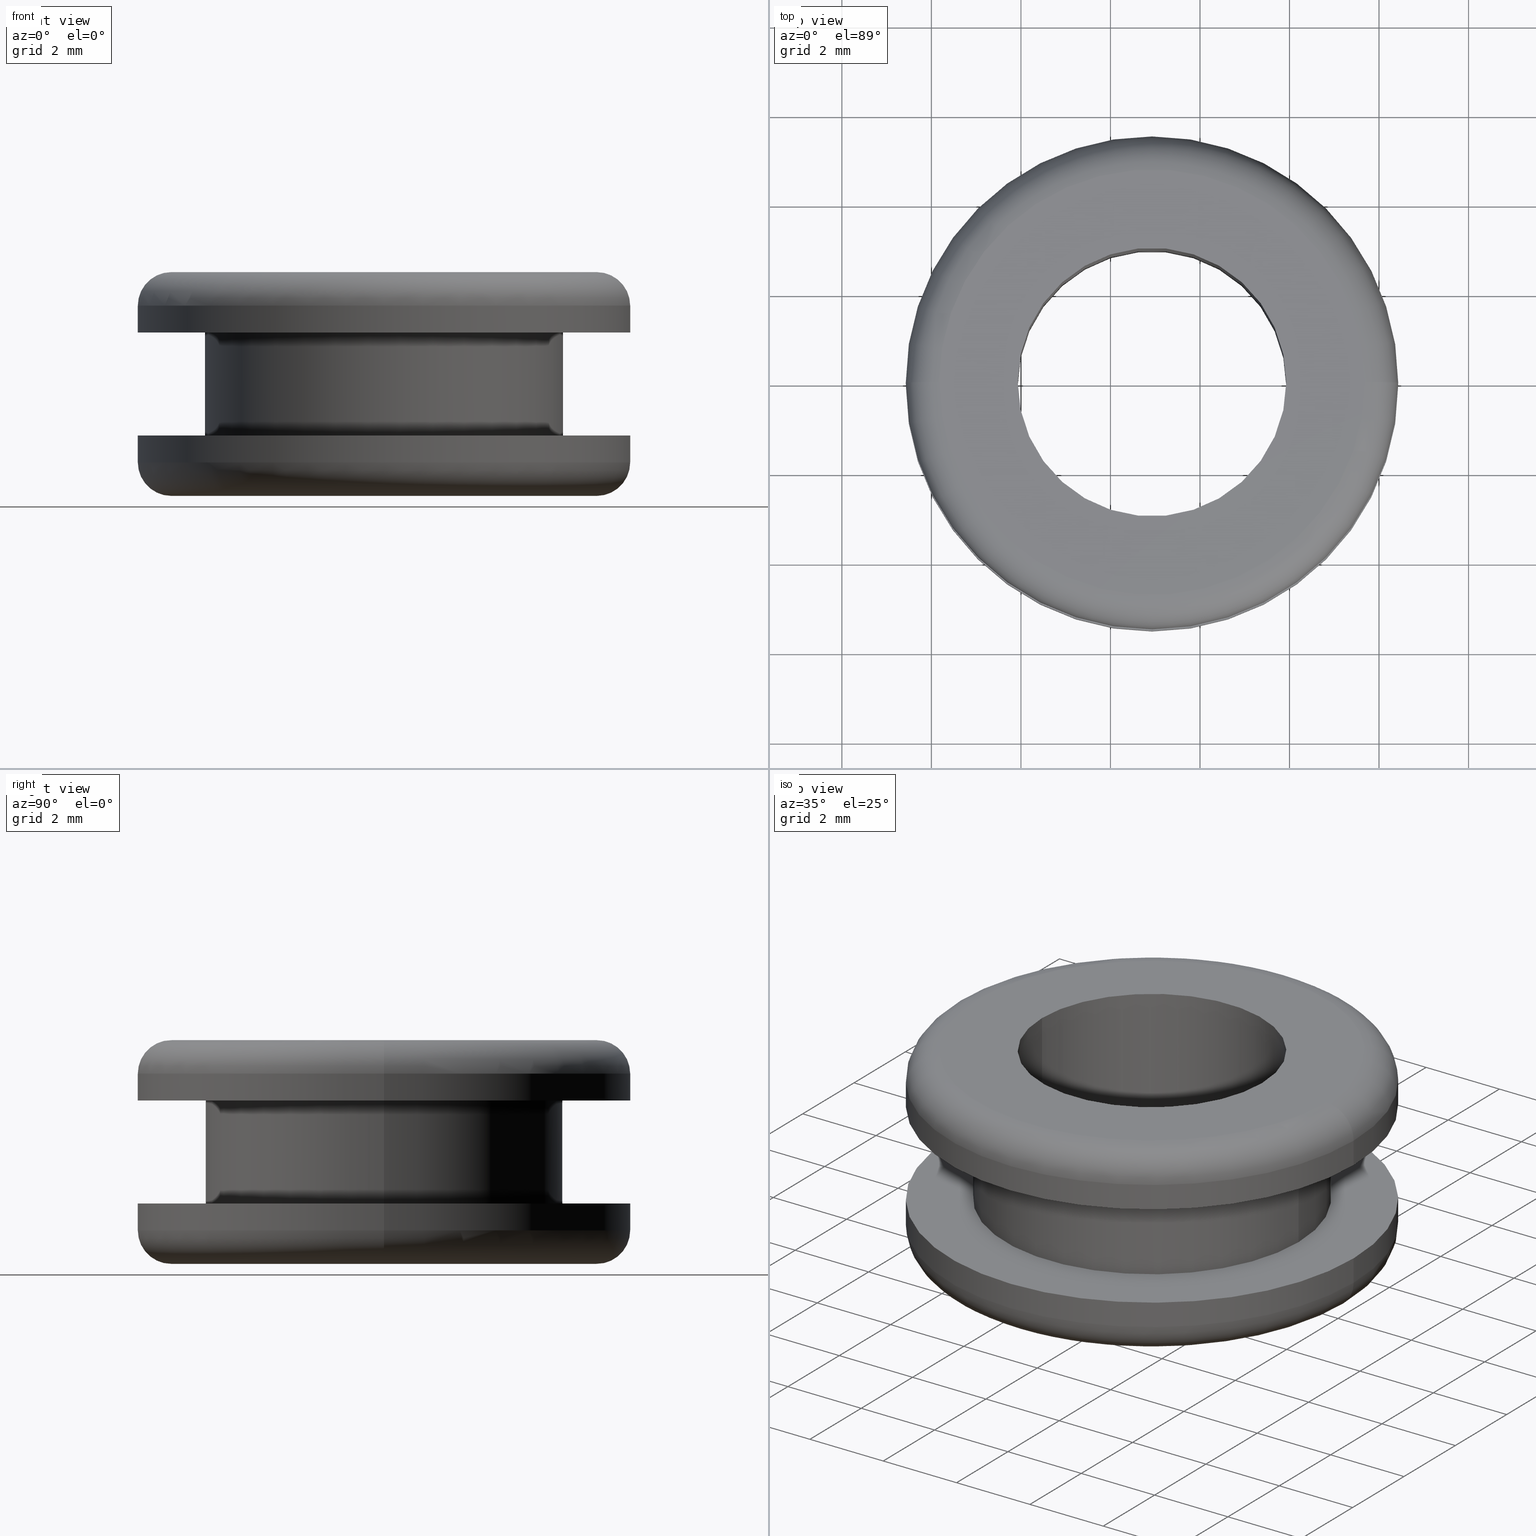
[diagram: canonical four-view strip — front | top / right | iso, engineering-drawing reading convention]
A machine part, canonical four-view strip (front | top / right | iso — engineering-drawing reading convention). The complete STEP part file that produces these views, byte-faithful:
ISO-10303-21;
HEADER;
FILE_DESCRIPTION (( 'STEP AP214' ),
    '1' );
FILE_NAME ('TM_346_9.STEP',
    '2018-06-13T02:54:28',
    ( '' ),
    ( '' ),
    'SwSTEP 2.0',
    'SolidWorks 2015',
    '' );
FILE_SCHEMA (( 'AUTOMOTIVE_DESIGN' ));
ENDSEC;

DATA;
#1 = DIRECTION ( 'NONE',  ( 1.000000000000000000, 0.0000000000000000000, 0.0000000000000000000 ) ) ;
#2 = VECTOR ( 'NONE', #240, 1000.000000000000000 ) ;
#3 = MECHANICAL_DESIGN_GEOMETRIC_PRESENTATION_REPRESENTATION (  '', ( #429 ), #29 ) ;
#4 = EDGE_LOOP ( 'NONE', ( #170, #343 ) ) ;
#5 = DIRECTION ( 'NONE',  ( 0.0000000000000000000, 0.0000000000000000000, -1.000000000000000000 ) ) ;
#6 = ADVANCED_FACE ( 'NONE', ( #11, #252 ), #16, .T. ) ;
#7 = LINE ( 'NONE', #328, #81 ) ;
#8 = VERTEX_POINT ( 'NONE', #103 ) ;
#9 = EDGE_CURVE ( 'NONE', #135, #413, #188, .T. ) ;
#10 = SURFACE_STYLE_FILL_AREA ( #163 ) ;
#11 = FACE_OUTER_BOUND ( 'NONE', #385, .T. ) ;
#12 = ORIENTED_EDGE ( 'NONE', *, *, #333, .F. ) ;
#13 = CIRCLE ( 'NONE', #226, 0.7500000000000006700 ) ;
#14 = ORIENTED_EDGE ( 'NONE', *, *, #432, .T. ) ;
#15 = DIRECTION ( 'NONE',  ( 0.0000000000000000000, 0.0000000000000000000, -1.000000000000000000 ) ) ;
#16 = PLANE ( 'NONE',  #263 ) ;
#17 = AXIS2_PLACEMENT_3D ( 'NONE', #362, #55, #107 ) ;
#18 = CARTESIAN_POINT ( 'NONE',  ( 104.1781270166739100, 0.0000000000000000000, 133.5834774696090200 ) ) ;
#19 = ORIENTED_EDGE ( 'NONE', *, *, #9, .F. ) ;
#20 = AXIS2_PLACEMENT_3D ( 'NONE', #93, #84, #21 ) ;
#21 = DIRECTION ( 'NONE',  ( -1.000000000000000000, 0.0000000000000000000, 0.0000000000000000000 ) ) ;
#22 = VERTEX_POINT ( 'NONE', #210 ) ;
#23 = DIRECTION ( 'NONE',  ( 0.0000000000000000000, 0.0000000000000000000, -1.000000000000000000 ) ) ;
#24 = ORIENTED_EDGE ( 'NONE', *, *, #381, .F. ) ;
#25 = EDGE_CURVE ( 'NONE', #154, #222, #386, .T. ) ;
#26 = CARTESIAN_POINT ( 'NONE',  ( 103.4281270166739500, 0.0000000000000000000, 0.0000000000000000000 ) ) ;
#27 = DIRECTION ( 'NONE',  ( 0.0000000000000000000, 0.0000000000000000000, -1.000000000000000000 ) ) ;
#28 = DIRECTION ( 'NONE',  ( -1.000000000000000000, 0.0000000000000000000, 0.0000000000000000000 ) ) ;
#29 =( GEOMETRIC_REPRESENTATION_CONTEXT ( 3 ) GLOBAL_UNCERTAINTY_ASSIGNED_CONTEXT ( ( #189 ) ) GLOBAL_UNIT_ASSIGNED_CONTEXT ( ( #96, #436, #211 ) ) REPRESENTATION_CONTEXT ( 'NONE', 'WORKASPACE' ) );
#30 = TOROIDAL_SURFACE ( 'NONE', #171, 4.750000000027499800, 0.7500000000000000000 ) ;
#31 = CARTESIAN_POINT ( 'NONE',  ( 105.9281270166740100, 0.0000000000000000000, 0.0000000000000000000 ) ) ;
#32 = CARTESIAN_POINT ( 'NONE',  ( 108.9281270167014100, 0.0000000000000000000, 134.9334774696090200 ) ) ;
#33 = ADVANCED_FACE ( 'NONE', ( #92 ), #465, .F. ) ;
#34 = EDGE_CURVE ( 'NONE', #268, #8, #179, .T. ) ;
#35 = EDGE_LOOP ( 'NONE', ( #61, #12, #157, #217 ) ) ;
#36 = ORIENTED_EDGE ( 'NONE', *, *, #453, .F. ) ;
#37 = DIRECTION ( 'NONE',  ( -1.000000000000000000, 0.0000000000000000000, 0.0000000000000000000 ) ) ;
#38 = ORIENTED_EDGE ( 'NONE', *, *, #402, .T. ) ;
#39 = CARTESIAN_POINT ( 'NONE',  ( 113.6781270167288900, 5.817072295983604900E-016, 134.3334774696090200 ) ) ;
#40 = FACE_OUTER_BOUND ( 'NONE', #116, .T. ) ;
#41 = ADVANCED_FACE ( 'NONE', ( #367, #79 ), #468, .T. ) ;
#42 = AXIS2_PLACEMENT_3D ( 'NONE', #235, #212, #125 ) ;
#43 = SURFACE_STYLE_FILL_AREA ( #351 ) ;
#44 = ORIENTED_EDGE ( 'NONE', *, *, #325, .T. ) ;
#45 = EDGE_CURVE ( 'NONE', #427, #403, #165, .T. ) ;
#46 = FACE_OUTER_BOUND ( 'NONE', #320, .T. ) ;
#47 = AXIS2_PLACEMENT_3D ( 'NONE', #63, #128, #245 ) ;
#48 = EDGE_CURVE ( 'NONE', #389, #456, #256, .T. ) ;
#49 = DIRECTION ( 'NONE',  ( 0.0000000000000000000, 0.0000000000000000000, -1.000000000000000000 ) ) ;
#50 = LINE ( 'NONE', #306, #437 ) ;
#51 = EDGE_LOOP ( 'NONE', ( #409, #159, #410, #19 ) ) ;
#52 = DIRECTION ( 'NONE',  ( 0.0000000000000000000, 0.0000000000000000000, -1.000000000000000000 ) ) ;
#53 = DIRECTION ( 'NONE',  ( -1.000000000000000000, -1.224646799147352000E-016, 0.0000000000000000000 ) ) ;
#54 = CARTESIAN_POINT ( 'NONE',  ( 108.9281270167014100, 0.0000000000000000000, 134.9334774696090200 ) ) ;
#55 = DIRECTION ( 'NONE',  ( 0.0000000000000000000, 0.0000000000000000000, -1.000000000000000000 ) ) ;
#56 = CIRCLE ( 'NONE', #452, 5.500000000027399400 ) ;
#57 = PRODUCT_DEFINITION_SHAPE ( 'NONE', 'NONE',  #120 ) ;
#58 = CARTESIAN_POINT ( 'NONE',  ( 108.9281270167014100, 0.0000000000000000000, 138.5834774696089900 ) ) ;
#59 = COLOUR_RGB ( '',0.7921568627450980000, 0.8196078431372548800, 0.9333333333333333500 ) ;
#60 = CIRCLE ( 'NONE', #139, 5.500000000027399400 ) ;
#61 = ORIENTED_EDGE ( 'NONE', *, *, #48, .F. ) ;
#62 = AXIS2_PLACEMENT_3D ( 'NONE', #129, #49, #463 ) ;
#63 = CARTESIAN_POINT ( 'NONE',  ( 108.9281270167014100, 0.0000000000000000000, 137.8334774696089900 ) ) ;
#64 = PLANE ( 'NONE',  #474 ) ;
#65 = CARTESIAN_POINT ( 'NONE',  ( 108.9281270167014100, 0.0000000000000000000, 134.3334774696090200 ) ) ;
#66 = CARTESIAN_POINT ( 'NONE',  ( 104.9281270166740100, 0.0000000000000000000, 134.9334774696090200 ) ) ;
#67 = EDGE_CURVE ( 'NONE', #22, #369, #70, .T. ) ;
#68 = DIRECTION ( 'NONE',  ( 0.0000000000000000000, 0.0000000000000000000, -1.000000000000000000 ) ) ;
#69 = DIRECTION ( 'NONE',  ( -1.000000000000000000, 0.0000000000000000000, 0.0000000000000000000 ) ) ;
#70 = LINE ( 'NONE', #31, #248 ) ;
#71 = ADVANCED_FACE ( 'NONE', ( #349 ), #338, .F. ) ;
#72 = ORIENTED_EDGE ( 'NONE', *, *, #76, .F. ) ;
#73 = VERTEX_POINT ( 'NONE', #203 ) ;
#74 = AXIS2_PLACEMENT_3D ( 'NONE', #142, #364, #284 ) ;
#75 = CIRCLE ( 'NONE', #42, 0.7500000000000006700 ) ;
#76 = EDGE_CURVE ( 'NONE', #198, #8, #292, .T. ) ;
#77 = ORIENTED_EDGE ( 'NONE', *, *, #453, .T. ) ;
#78 = ORIENTED_EDGE ( 'NONE', *, *, #151, .F. ) ;
#79 = FACE_BOUND ( 'NONE', #4, .T. ) ;
#80 = ORIENTED_EDGE ( 'NONE', *, *, #117, .T. ) ;
#81 = VECTOR ( 'NONE', #143, 1000.000000000000000 ) ;
#82 = ORIENTED_EDGE ( 'NONE', *, *, #105, .F. ) ;
#83 = DIRECTION ( 'NONE',  ( -1.000000000000000000, 0.0000000000000000000, 0.0000000000000000000 ) ) ;
#84 = DIRECTION ( 'NONE',  ( 0.0000000000000000000, 0.0000000000000000000, -1.000000000000000000 ) ) ;
#85 = AXIS2_PLACEMENT_3D ( 'NONE', #97, #68, #392 ) ;
#86 = CARTESIAN_POINT ( 'NONE',  ( 113.6781270167288900, 6.276314845663863700E-016, 138.5834774696089900 ) ) ;
#87 = ORIENTED_EDGE ( 'NONE', *, *, #346, .F. ) ;
#88 = CARTESIAN_POINT ( 'NONE',  ( 114.4281270167289900, 0.0000000000000000000, 134.9334774696090200 ) ) ;
#89 = CARTESIAN_POINT ( 'NONE',  ( 104.1781270166739100, 0.0000000000000000000, 134.3334774696090200 ) ) ;
#90 = CYLINDRICAL_SURFACE ( 'NONE', #377, 4.000000000027398500 ) ;
#91 = EDGE_CURVE ( 'NONE', #101, #173, #445, .T. ) ;
#92 = FACE_OUTER_BOUND ( 'NONE', #296, .T. ) ;
#93 = CARTESIAN_POINT ( 'NONE',  ( 108.9281270167014100, 0.0000000000000000000, 137.8334774696089900 ) ) ;
#94 = DIRECTION ( 'NONE',  ( -0.0000000000000000000, -1.000000000000000000, -0.0000000000000000000 ) ) ;
#95 = DIRECTION ( 'NONE',  ( -1.000000000000000000, 0.0000000000000000000, 0.0000000000000000000 ) ) ;
#96 =( LENGTH_UNIT ( ) NAMED_UNIT ( * ) SI_UNIT ( .MILLI., .METRE. ) );
#97 = CARTESIAN_POINT ( 'NONE',  ( 108.9281270167014100, 0.0000000000000000000, 134.3334774696090200 ) ) ;
#98 = AXIS2_PLACEMENT_3D ( 'NONE', #279, #358, #285 ) ;
#99 = DIRECTION ( 'NONE',  ( 0.0000000000000000000, 0.0000000000000000000, -1.000000000000000000 ) ) ;
#100 = CIRCLE ( 'NONE', #396, 0.7500000000000006700 ) ;
#101 = VERTEX_POINT ( 'NONE', #424 ) ;
#102 = AXIS2_PLACEMENT_3D ( 'NONE', #88, #166, #361 ) ;
#103 = CARTESIAN_POINT ( 'NONE',  ( 114.4281270167288900, 6.735557395344127400E-016, 134.3334774696090200 ) ) ;
#104 = CARTESIAN_POINT ( 'NONE',  ( 108.9281270167014100, 0.0000000000000000000, 0.0000000000000000000 ) ) ;
#105 = EDGE_CURVE ( 'NONE', #135, #154, #56, .T. ) ;
#106 = ADVANCED_FACE ( 'NONE', ( #236 ), #147, .T. ) ;
#107 = DIRECTION ( 'NONE',  ( -1.000000000000000000, 0.0000000000000000000, 0.0000000000000000000 ) ) ;
#108 = DIRECTION ( 'NONE',  ( -1.000000000000000000, 0.0000000000000000000, 0.0000000000000000000 ) ) ;
#109 = CIRCLE ( 'NONE', #274, 5.500000000027497100 ) ;
#110 = EDGE_LOOP ( 'NONE', ( #301, #416, #254, #138 ) ) ;
#111 = ORIENTED_EDGE ( 'NONE', *, *, #123, .F. ) ;
#112 = CIRCLE ( 'NONE', #261, 4.750000000027496200 ) ;
#113 = ORIENTED_EDGE ( 'NONE', *, *, #305, .T. ) ;
#114 = AXIS2_PLACEMENT_3D ( 'NONE', #162, #52, #290 ) ;
#115 = ORIENTED_EDGE ( 'NONE', *, *, #9, .T. ) ;
#116 = EDGE_LOOP ( 'NONE', ( #348, #185 ) ) ;
#117 = EDGE_CURVE ( 'NONE', #222, #413, #155, .T. ) ;
#118 = EDGE_LOOP ( 'NONE', ( #450, #335, #72, #111 ) ) ;
#119 = FACE_OUTER_BOUND ( 'NONE', #126, .T. ) ;
#120 = PRODUCT_DEFINITION ( 'UNKNOWN', '', #148, #350 ) ;
#121 = AXIS2_PLACEMENT_3D ( 'NONE', #387, #322, #108 ) ;
#122 = CARTESIAN_POINT ( 'NONE',  ( 113.6781270167289900, 0.0000000000000000000, 138.5834774696089900 ) ) ;
#123 = EDGE_CURVE ( 'NONE', #260, #198, #428, .T. ) ;
#124 =( NAMED_UNIT ( * ) PLANE_ANGLE_UNIT ( ) SI_UNIT ( $, .RADIAN. ) );
#125 = DIRECTION ( 'NONE',  ( -1.000000000000000000, -1.224646799147352000E-016, 0.0000000000000000000 ) ) ;
#126 = EDGE_LOOP ( 'NONE', ( #347, #77, #44, #87 ) ) ;
#127 = CARTESIAN_POINT ( 'NONE',  ( 108.9281270167014100, 0.0000000000000000000, 134.3334774696090200 ) ) ;
#128 = DIRECTION ( 'NONE',  ( 0.0000000000000000000, 0.0000000000000000000, -1.000000000000000000 ) ) ;
#129 = CARTESIAN_POINT ( 'NONE',  ( 108.9281270167014100, 0.0000000000000000000, 133.5834774696090200 ) ) ;
#130 = CARTESIAN_POINT ( 'NONE',  ( 108.9281270167014100, 0.0000000000000000000, 0.0000000000000000000 ) ) ;
#131 = TOROIDAL_SURFACE ( 'NONE', #47, 4.750000000027499800, 0.7500000000000000000 ) ;
#132 = DIRECTION ( 'NONE',  ( 0.0000000000000000000, 0.0000000000000000000, -1.000000000000000000 ) ) ;
#133 = DIRECTION ( 'NONE',  ( -1.000000000000000000, 0.0000000000000000000, 0.0000000000000000000 ) ) ;
#134 = ADVANCED_FACE ( 'NONE', ( #46 ), #131, .T. ) ;
#135 = VERTEX_POINT ( 'NONE', #160 ) ;
#136 = CARTESIAN_POINT ( 'NONE',  ( 103.4281270166739100, 0.0000000000000000000, 134.3334774696090200 ) ) ;
#137 = PRESENTATION_STYLE_ASSIGNMENT (( #398 ) ) ;
#138 = ORIENTED_EDGE ( 'NONE', *, *, #45, .F. ) ;
#139 = AXIS2_PLACEMENT_3D ( 'NONE', #168, #23, #164 ) ;
#140 = DIRECTION ( 'NONE',  ( -1.000000000000000000, 0.0000000000000000000, 0.0000000000000000000 ) ) ;
#141 = DIRECTION ( 'NONE',  ( 0.0000000000000000000, 0.0000000000000000000, -1.000000000000000000 ) ) ;
#142 = CARTESIAN_POINT ( 'NONE',  ( 108.9281270167014100, 0.0000000000000000000, 138.5834774696089900 ) ) ;
#143 = DIRECTION ( 'NONE',  ( 0.0000000000000000000, 0.0000000000000000000, -1.000000000000000000 ) ) ;
#144 = ORIENTED_EDGE ( 'NONE', *, *, #280, .F. ) ;
#145 = ORIENTED_EDGE ( 'NONE', *, *, #423, .F. ) ;
#146 = DIRECTION ( 'NONE',  ( 0.0000000000000000000, 0.0000000000000000000, -1.000000000000000000 ) ) ;
#147 = TOROIDAL_SURFACE ( 'NONE', #20, 4.750000000027499800, 0.7500000000000000000 ) ;
#148 = PRODUCT_DEFINITION_FORMATION_WITH_SPECIFIED_SOURCE ( 'ANY', '', #446, .NOT_KNOWN. ) ;
#149 = ADVANCED_FACE ( 'NONE', ( #414, #40 ), #438, .T. ) ;
#150 = AXIS2_PLACEMENT_3D ( 'NONE', #39, #220, #53 ) ;
#151 = EDGE_CURVE ( 'NONE', #365, #360, #224, .T. ) ;
#152 = CIRCLE ( 'NONE', #186, 4.000000000027398500 ) ;
#153 = EDGE_LOOP ( 'NONE', ( #78, #144 ) ) ;
#154 = VERTEX_POINT ( 'NONE', #289 ) ;
#155 = CIRCLE ( 'NONE', #475, 5.500000000027399400 ) ;
#156 =( LENGTH_UNIT ( ) NAMED_UNIT ( * ) SI_UNIT ( .MILLI., .METRE. ) );
#157 = ORIENTED_EDGE ( 'NONE', *, *, #67, .T. ) ;
#158 = TOROIDAL_SURFACE ( 'NONE', #85, 4.750000000027499800, 0.7500000000000000000 ) ;
#159 = ORIENTED_EDGE ( 'NONE', *, *, #25, .T. ) ;
#160 = CARTESIAN_POINT ( 'NONE',  ( 103.4281270166740000, 0.0000000000000000000, 137.8334774696089900 ) ) ;
#161 = AXIS2_PLACEMENT_3D ( 'NONE', #258, #404, #37 ) ;
#162 = CARTESIAN_POINT ( 'NONE',  ( 108.9281270167014100, 0.0000000000000000000, 133.5834774696090200 ) ) ;
#163 = FILL_AREA_STYLE ('',( #316 ) ) ;
#164 = DIRECTION ( 'NONE',  ( -1.000000000000000000, 0.0000000000000000000, 0.0000000000000000000 ) ) ;
#165 = CIRCLE ( 'NONE', #243, 4.000000000027398500 ) ;
#166 = DIRECTION ( 'NONE',  ( 0.0000000000000000000, 0.0000000000000000000, 1.000000000000000000 ) ) ;
#167 = DIRECTION ( 'NONE',  ( 0.0000000000000000000, 0.0000000000000000000, -1.000000000000000000 ) ) ;
#168 = CARTESIAN_POINT ( 'NONE',  ( 108.9281270167014100, 0.0000000000000000000, 137.2334774696090000 ) ) ;
#169 = PRODUCT_RELATED_PRODUCT_CATEGORY ( 'part', '', ( #446 ) ) ;
#170 = ORIENTED_EDGE ( 'NONE', *, *, #174, .F. ) ;
#171 = AXIS2_PLACEMENT_3D ( 'NONE', #65, #473, #140 ) ;
#172 = CYLINDRICAL_SURFACE ( 'NONE', #417, 4.000000000027398500 ) ;
#173 = VERTEX_POINT ( 'NONE', #326 ) ;
#174 = EDGE_CURVE ( 'NONE', #173, #101, #331, .T. ) ;
#175 = DIRECTION ( 'NONE',  ( 0.0000000000000000000, 0.0000000000000000000, -1.000000000000000000 ) ) ;
#176 = CARTESIAN_POINT ( 'NONE',  ( 108.9281270167014100, 0.0000000000000000000, 137.8334774696089900 ) ) ;
#177 = CARTESIAN_POINT ( 'NONE',  ( 108.9281270167014100, 0.0000000000000000000, 138.5834774696089900 ) ) ;
#178 = DIRECTION ( 'NONE',  ( 0.0000000000000000000, 0.0000000000000000000, -1.000000000000000000 ) ) ;
#179 = LINE ( 'NONE', #430, #376 ) ;
#180 = CARTESIAN_POINT ( 'NONE',  ( 114.4281270167288100, 6.735557395343997200E-016, 0.0000000000000000000 ) ) ;
#181 = PRESENTATION_STYLE_ASSIGNMENT (( #207 ) ) ;
#182 = ORIENTED_EDGE ( 'NONE', *, *, #34, .F. ) ;
#183 = ADVANCED_FACE ( 'NONE', ( #119 ), #30, .T. ) ;
#184 = CYLINDRICAL_SURFACE ( 'NONE', #373, 5.500000000027455400 ) ;
#185 = ORIENTED_EDGE ( 'NONE', *, *, #478, .F. ) ;
#186 = AXIS2_PLACEMENT_3D ( 'NONE', #206, #200, #388 ) ;
#187 = CIRCLE ( 'NONE', #352, 5.500000000027399400 ) ;
#188 = LINE ( 'NONE', #234, #2 ) ;
#189 = UNCERTAINTY_MEASURE_WITH_UNIT (LENGTH_MEASURE( 1.000000000000000100E-005 ), #96, 'distance_accuracy_value', 'NONE');
#190 = ORIENTED_EDGE ( 'NONE', *, *, #117, .F. ) ;
#191 = FACE_OUTER_BOUND ( 'NONE', #153, .T. ) ;
#192 = DIRECTION ( 'NONE',  ( 0.0000000000000000000, 0.0000000000000000000, -1.000000000000000000 ) ) ;
#193 = ORIENTED_EDGE ( 'NONE', *, *, #67, .F. ) ;
#194 = SHAPE_DEFINITION_REPRESENTATION ( #57, #319 ) ;
#195 = AXIS2_PLACEMENT_3D ( 'NONE', #176, #178, #69 ) ;
#196 = EDGE_CURVE ( 'NONE', #8, #73, #314, .T. ) ;
#197 = UNCERTAINTY_MEASURE_WITH_UNIT (LENGTH_MEASURE( 1.000000000000000100E-005 ), #156, 'distance_accuracy_value', 'NONE');
#198 = VERTEX_POINT ( 'NONE', #136 ) ;
#199 = DIRECTION ( 'NONE',  ( 0.0000000000000000000, 0.0000000000000000000, -1.000000000000000000 ) ) ;
#200 = DIRECTION ( 'NONE',  ( 0.0000000000000000000, 0.0000000000000000000, -1.000000000000000000 ) ) ;
#201 = FACE_OUTER_BOUND ( 'NONE', #110, .T. ) ;
#202 = ORIENTED_EDGE ( 'NONE', *, *, #228, .T. ) ;
#203 = CARTESIAN_POINT ( 'NONE',  ( 113.6781270167288900, 6.276314845663863700E-016, 133.5834774696090200 ) ) ;
#204 = APPLICATION_CONTEXT ( 'automotive_design' ) ;
#205 = DIRECTION ( 'NONE',  ( 0.0000000000000000000, 0.0000000000000000000, -1.000000000000000000 ) ) ;
#206 = CARTESIAN_POINT ( 'NONE',  ( 108.9281270167014100, 0.0000000000000000000, 134.9334774696090200 ) ) ;
#207 = SURFACE_STYLE_USAGE ( .BOTH. , #311 ) ;
#208 = CIRCLE ( 'NONE', #195, 5.500000000027399400 ) ;
#209 = ORIENTED_EDGE ( 'NONE', *, *, #478, .T. ) ;
#210 = CARTESIAN_POINT ( 'NONE',  ( 105.9281270166740100, 0.0000000000000000000, 138.5834774696089900 ) ) ;
#211 =( NAMED_UNIT ( * ) SI_UNIT ( $, .STERADIAN. ) SOLID_ANGLE_UNIT ( ) );
#212 = DIRECTION ( 'NONE',  ( -1.224646799147353200E-016, 1.000000000000000000, 0.0000000000000000000 ) ) ;
#213 = ORIENTED_EDGE ( 'NONE', *, *, #432, .F. ) ;
#214 =( NAMED_UNIT ( * ) SI_UNIT ( $, .STERADIAN. ) SOLID_ANGLE_UNIT ( ) );
#215 = DIRECTION ( 'NONE',  ( 0.0000000000000000000, 0.0000000000000000000, -1.000000000000000000 ) ) ;
#216 = PRESENTATION_LAYER_ASSIGNMENT (  '', '', ( #232 ) ) ;
#217 = ORIENTED_EDGE ( 'NONE', *, *, #375, .T. ) ;
#218 = CARTESIAN_POINT ( 'NONE',  ( 108.9281270167014100, 0.0000000000000000000, 0.0000000000000000000 ) ) ;
#219 = DIRECTION ( 'NONE',  ( 0.0000000000000000000, 0.0000000000000000000, -1.000000000000000000 ) ) ;
#220 = DIRECTION ( 'NONE',  ( -1.224646799147353200E-016, 1.000000000000000000, 0.0000000000000000000 ) ) ;
#221 = CARTESIAN_POINT ( 'NONE',  ( 108.9281270167014100, 0.0000000000000000000, 0.0000000000000000000 ) ) ;
#222 = VERTEX_POINT ( 'NONE', #476 ) ;
#223 = CARTESIAN_POINT ( 'NONE',  ( 108.9281270167014100, 0.0000000000000000000, 0.0000000000000000000 ) ) ;
#224 = CIRCLE ( 'NONE', #74, 4.750000000027496200 ) ;
#225 = ADVANCED_FACE ( 'NONE', ( #304 ), #393, .T. ) ;
#226 = AXIS2_PLACEMENT_3D ( 'NONE', #444, #329, #146 ) ;
#227 = VECTOR ( 'NONE', #269, 1000.000000000000000 ) ;
#228 = EDGE_CURVE ( 'NONE', #365, #135, #13, .T. ) ;
#229 = FILL_AREA_STYLE_COLOUR ( '', #230 ) ;
#230 = COLOUR_RGB ( '',0.7921568627450980000, 0.8196078431372548800, 0.9333333333333333500 ) ;
#231 = CARTESIAN_POINT ( 'NONE',  ( 108.9281270167014100, 0.0000000000000000000, 137.2334774696090000 ) ) ;
#232 = STYLED_ITEM ( 'NONE', ( #137 ), #448 ) ;
#233 = CARTESIAN_POINT ( 'NONE',  ( 112.9281270167288100, 4.898587196622970000E-016, 134.9334774696090200 ) ) ;
#234 = CARTESIAN_POINT ( 'NONE',  ( 103.4281270166740000, 0.0000000000000000000, 0.0000000000000000000 ) ) ;
#235 = CARTESIAN_POINT ( 'NONE',  ( 113.6781270167288900, 5.817072295983604900E-016, 137.8334774696089900 ) ) ;
#236 = FACE_OUTER_BOUND ( 'NONE', #251, .T. ) ;
#237 = CARTESIAN_POINT ( 'NONE',  ( 111.9281270167287900, 3.673940397475615100E-016, 0.0000000000000000000 ) ) ;
#238 = SURFACE_SIDE_STYLE ('',( #43 ) ) ;
#239 = DIRECTION ( 'NONE',  ( 0.0000000000000000000, 0.0000000000000000000, -1.000000000000000000 ) ) ;
#240 = DIRECTION ( 'NONE',  ( 0.0000000000000000000, 0.0000000000000000000, -1.000000000000000000 ) ) ;
#241 = CARTESIAN_POINT ( 'NONE',  ( 108.9281270167014100, 0.0000000000000000000, 0.0000000000000000000 ) ) ;
#242 = AXIS2_PLACEMENT_3D ( 'NONE', #218, #434, #440 ) ;
#243 = AXIS2_PLACEMENT_3D ( 'NONE', #54, #310, #95 ) ;
#244 = EDGE_LOOP ( 'NONE', ( #372, #24 ) ) ;
#245 = DIRECTION ( 'NONE',  ( -1.000000000000000000, 0.0000000000000000000, 0.0000000000000000000 ) ) ;
#246 = DIRECTION ( 'NONE',  ( -1.000000000000000000, 0.0000000000000000000, 0.0000000000000000000 ) ) ;
#247 = CARTESIAN_POINT ( 'NONE',  ( 114.4281270167288100, 6.735557395344025800E-016, 134.9334774696090200 ) ) ;
#248 = VECTOR ( 'NONE', #275, 1000.000000000000000 ) ;
#249 =( GEOMETRIC_REPRESENTATION_CONTEXT ( 3 ) GLOBAL_UNCERTAINTY_ASSIGNED_CONTEXT ( ( #411 ) ) GLOBAL_UNIT_ASSIGNED_CONTEXT ( ( #464, #265, #467 ) ) REPRESENTATION_CONTEXT ( 'NONE', 'WORKASPACE' ) );
#250 = EDGE_CURVE ( 'NONE', #154, #135, #208, .T. ) ;
#251 = EDGE_LOOP ( 'NONE', ( #477, #443, #82, #309 ) ) ;
#252 = FACE_BOUND ( 'NONE', #244, .T. ) ;
#253 = CIRCLE ( 'NONE', #114, 3.000000000027397600 ) ;
#254 = ORIENTED_EDGE ( 'NONE', *, *, #408, .T. ) ;
#255 = AXIS2_PLACEMENT_3D ( 'NONE', #469, #219, #318 ) ;
#256 = LINE ( 'NONE', #237, #454 ) ;
#257 = ORIENTED_EDGE ( 'NONE', *, *, #408, .F. ) ;
#258 = CARTESIAN_POINT ( 'NONE',  ( 108.9281270167014100, 0.0000000000000000000, 138.5834774696089900 ) ) ;
#259 = CIRCLE ( 'NONE', #17, 4.750000000027496200 ) ;
#260 = VERTEX_POINT ( 'NONE', #405 ) ;
#261 = AXIS2_PLACEMENT_3D ( 'NONE', #177, #215, #363 ) ;
#262 = DIRECTION ( 'NONE',  ( -1.000000000000000000, 0.0000000000000000000, 0.0000000000000000000 ) ) ;
#263 = AXIS2_PLACEMENT_3D ( 'NONE', #395, #5, #28 ) ;
#264 = DIRECTION ( 'NONE',  ( 0.0000000000000000000, 0.0000000000000000000, -1.000000000000000000 ) ) ;
#265 =( NAMED_UNIT ( * ) PLANE_ANGLE_UNIT ( ) SI_UNIT ( $, .RADIAN. ) );
#266 = CARTESIAN_POINT ( 'NONE',  ( 108.9281270167014100, 0.0000000000000000000, 134.3334774696090200 ) ) ;
#267 = DIRECTION ( 'NONE',  ( 0.0000000000000000000, 0.0000000000000000000, 1.000000000000000000 ) ) ;
#268 = VERTEX_POINT ( 'NONE', #247 ) ;
#269 = DIRECTION ( 'NONE',  ( 0.0000000000000000000, 0.0000000000000000000, -1.000000000000000000 ) ) ;
#270 = CARTESIAN_POINT ( 'NONE',  ( 105.9281270166740100, 0.0000000000000000000, 133.5834774696090200 ) ) ;
#271 = VECTOR ( 'NONE', #99, 1000.000000000000000 ) ;
#272 = DIRECTION ( 'NONE',  ( -1.000000000000000000, 0.0000000000000000000, 0.0000000000000000000 ) ) ;
#273 = DIRECTION ( 'NONE',  ( -1.000000000000000000, 0.0000000000000000000, 0.0000000000000000000 ) ) ;
#274 = AXIS2_PLACEMENT_3D ( 'NONE', #127, #418, #383 ) ;
#275 = DIRECTION ( 'NONE',  ( 0.0000000000000000000, 0.0000000000000000000, -1.000000000000000000 ) ) ;
#276 = CARTESIAN_POINT ( 'NONE',  ( 104.1781270166739100, 0.0000000000000000000, 138.5834774696089900 ) ) ;
#277 = DIRECTION ( 'NONE',  ( 0.0000000000000000000, 0.0000000000000000000, -1.000000000000000000 ) ) ;
#278 = ORIENTED_EDGE ( 'NONE', *, *, #25, .F. ) ;
#279 = CARTESIAN_POINT ( 'NONE',  ( 0.0000000000000000000, 0.0000000000000000000, 0.0000000000000000000 ) ) ;
#280 = EDGE_CURVE ( 'NONE', #360, #365, #112, .T. ) ;
#281 = CIRCLE ( 'NONE', #297, 4.750000000027496200 ) ;
#282 = EDGE_LOOP ( 'NONE', ( #312, #113, #213, #257 ) ) ;
#283 = ADVANCED_FACE ( 'NONE', ( #407 ), #380, .T. ) ;
#284 = DIRECTION ( 'NONE',  ( -1.000000000000000000, 0.0000000000000000000, 0.0000000000000000000 ) ) ;
#285 = DIRECTION ( 'NONE',  ( 1.000000000000000000, 0.0000000000000000000, 0.0000000000000000000 ) ) ;
#286 = CARTESIAN_POINT ( 'NONE',  ( 108.9281270167014100, 0.0000000000000000000, 0.0000000000000000000 ) ) ;
#287 = ORIENTED_EDGE ( 'NONE', *, *, #298, .F. ) ;
#288 = MECHANICAL_DESIGN_GEOMETRIC_PRESENTATION_REPRESENTATION (  '', ( #232 ), #249 ) ;
#289 = CARTESIAN_POINT ( 'NONE',  ( 114.4281270167288100, 6.735557395343997200E-016, 137.8334774696089900 ) ) ;
#290 = DIRECTION ( 'NONE',  ( -1.000000000000000000, 0.0000000000000000000, 0.0000000000000000000 ) ) ;
#291 = DIRECTION ( 'NONE',  ( -1.000000000000000000, 0.0000000000000000000, 0.0000000000000000000 ) ) ;
#292 = CIRCLE ( 'NONE', #399, 5.500000000027497100 ) ;
#293 = DIRECTION ( 'NONE',  ( 0.0000000000000000000, 0.0000000000000000000, -1.000000000000000000 ) ) ;
#294 = FACE_OUTER_BOUND ( 'NONE', #118, .T. ) ;
#295 = ADVANCED_FACE ( 'NONE', ( #294 ), #184, .T. ) ;
#296 = EDGE_LOOP ( 'NONE', ( #145, #401, #337, #193 ) ) ;
#297 = AXIS2_PLACEMENT_3D ( 'NONE', #366, #27, #133 ) ;
#298 = EDGE_CURVE ( 'NONE', #323, #73, #281, .T. ) ;
#299 = ORIENTED_EDGE ( 'NONE', *, *, #76, .T. ) ;
#300 = CIRCLE ( 'NONE', #302, 5.500000000027399400 ) ;
#301 = ORIENTED_EDGE ( 'NONE', *, *, #305, .F. ) ;
#302 = AXIS2_PLACEMENT_3D ( 'NONE', #32, #459, #425 ) ;
#303 = ORIENTED_EDGE ( 'NONE', *, *, #123, .T. ) ;
#304 = FACE_OUTER_BOUND ( 'NONE', #51, .T. ) ;
#305 = EDGE_CURVE ( 'NONE', #101, #427, #7, .T. ) ;
#306 = CARTESIAN_POINT ( 'NONE',  ( 104.9281270166740100, 0.0000000000000000000, 0.0000000000000000000 ) ) ;
#307 = ORIENTED_EDGE ( 'NONE', *, *, #298, .T. ) ;
#308 = DIRECTION ( 'NONE',  ( 0.0000000000000000000, 0.0000000000000000000, -1.000000000000000000 ) ) ;
#309 = ORIENTED_EDGE ( 'NONE', *, *, #228, .F. ) ;
#310 = DIRECTION ( 'NONE',  ( 0.0000000000000000000, 0.0000000000000000000, -1.000000000000000000 ) ) ;
#311 = SURFACE_SIDE_STYLE ('',( #10 ) ) ;
#312 = ORIENTED_EDGE ( 'NONE', *, *, #174, .T. ) ;
#313 = APPLICATION_PROTOCOL_DEFINITION ( 'draft international standard', 'automotive_design', 1998, #204 ) ;
#314 = CIRCLE ( 'NONE', #150, 0.7500000000000006700 ) ;
#315 = DIRECTION ( 'NONE',  ( 0.0000000000000000000, 0.0000000000000000000, -1.000000000000000000 ) ) ;
#316 = FILL_AREA_STYLE_COLOUR ( '', #59 ) ;
#317 = ADVANCED_FACE ( 'NONE', ( #470 ), #172, .T. ) ;
#318 = DIRECTION ( 'NONE',  ( -1.000000000000000000, 0.0000000000000000000, 0.0000000000000000000 ) ) ;
#319 = ADVANCED_BREP_SHAPE_REPRESENTATION ( 'TM_346_9', ( #448, #98 ), #330 ) ;
#320 = EDGE_LOOP ( 'NONE', ( #412, #382, #202, #378 ) ) ;
#321 = AXIS2_PLACEMENT_3D ( 'NONE', #223, #277, #355 ) ;
#322 = DIRECTION ( 'NONE',  ( 0.0000000000000000000, 0.0000000000000000000, -1.000000000000000000 ) ) ;
#323 = VERTEX_POINT ( 'NONE', #18 ) ;
#324 = DIRECTION ( 'NONE',  ( -1.000000000000000000, 0.0000000000000000000, 0.0000000000000000000 ) ) ;
#325 = EDGE_CURVE ( 'NONE', #198, #323, #100, .T. ) ;
#326 = CARTESIAN_POINT ( 'NONE',  ( 104.9281270166740100, 0.0000000000000000000, 137.2334774696090000 ) ) ;
#327 = DIRECTION ( 'NONE',  ( 0.0000000000000000000, 0.0000000000000000000, -1.000000000000000000 ) ) ;
#328 = CARTESIAN_POINT ( 'NONE',  ( 112.9281270167288100, 4.898587196622968000E-016, 0.0000000000000000000 ) ) ;
#329 = DIRECTION ( 'NONE',  ( -0.0000000000000000000, -1.000000000000000000, -0.0000000000000000000 ) ) ;
#330 =( GEOMETRIC_REPRESENTATION_CONTEXT ( 3 ) GLOBAL_UNCERTAINTY_ASSIGNED_CONTEXT ( ( #197 ) ) GLOBAL_UNIT_ASSIGNED_CONTEXT ( ( #156, #124, #214 ) ) REPRESENTATION_CONTEXT ( 'NONE', 'WORKASPACE' ) );
#331 = CIRCLE ( 'NONE', #121, 4.000000000027398500 ) ;
#332 = ADVANCED_FACE ( 'NONE', ( #371, #191 ), #64, .T. ) ;
#333 = EDGE_CURVE ( 'NONE', #22, #389, #458, .T. ) ;
#334 = FACE_OUTER_BOUND ( 'NONE', #406, .T. ) ;
#335 = ORIENTED_EDGE ( 'NONE', *, *, #34, .T. ) ;
#336 = ORIENTED_EDGE ( 'NONE', *, *, #346, .T. ) ;
#337 = ORIENTED_EDGE ( 'NONE', *, *, #381, .T. ) ;
#338 = CYLINDRICAL_SURFACE ( 'NONE', #420, 3.000000000027397600 ) ;
#339 = CARTESIAN_POINT ( 'NONE',  ( 108.9281270167014100, 0.0000000000000000000, 134.9334774696090200 ) ) ;
#340 = AXIS2_PLACEMENT_3D ( 'NONE', #221, #141, #324 ) ;
#341 = CIRCLE ( 'NONE', #161, 3.000000000027397600 ) ;
#342 = APPLICATION_PROTOCOL_DEFINITION ( 'draft international standard', 'automotive_design', 1998, #441 ) ;
#343 = ORIENTED_EDGE ( 'NONE', *, *, #91, .F. ) ;
#344 = AXIS2_PLACEMENT_3D ( 'NONE', #390, #132, #353 ) ;
#345 = DIRECTION ( 'NONE',  ( -1.000000000000000000, 0.0000000000000000000, 0.0000000000000000000 ) ) ;
#346 = EDGE_CURVE ( 'NONE', #73, #323, #259, .T. ) ;
#347 = ORIENTED_EDGE ( 'NONE', *, *, #196, .F. ) ;
#348 = ORIENTED_EDGE ( 'NONE', *, *, #457, .F. ) ;
#349 = FACE_OUTER_BOUND ( 'NONE', #35, .T. ) ;
#350 = PRODUCT_DEFINITION_CONTEXT ( 'detailed design', #441, 'design' ) ;
#351 = FILL_AREA_STYLE ('',( #229 ) ) ;
#352 = AXIS2_PLACEMENT_3D ( 'NONE', #339, #327, #273 ) ;
#353 = DIRECTION ( 'NONE',  ( -1.000000000000000000, 0.0000000000000000000, 0.0000000000000000000 ) ) ;
#354 = PRODUCT_CONTEXT ( 'NONE', #204, 'mechanical' ) ;
#355 = DIRECTION ( 'NONE',  ( -1.000000000000000000, 0.0000000000000000000, 0.0000000000000000000 ) ) ;
#356 = CLOSED_SHELL ( 'NONE', ( #33, #106, #225, #317, #295, #368, #6, #183, #283, #149, #471, #41, #435, #134, #332, #71 ) ) ;
#357 = EDGE_CURVE ( 'NONE', #360, #154, #75, .T. ) ;
#358 = DIRECTION ( 'NONE',  ( 0.0000000000000000000, 0.0000000000000000000, 1.000000000000000000 ) ) ;
#359 = CIRCLE ( 'NONE', #62, 3.000000000027397600 ) ;
#360 = VERTEX_POINT ( 'NONE', #86 ) ;
#361 = DIRECTION ( 'NONE',  ( 1.000000000000000000, 0.0000000000000000000, 0.0000000000000000000 ) ) ;
#362 = CARTESIAN_POINT ( 'NONE',  ( 108.9281270167014100, 0.0000000000000000000, 133.5834774696090200 ) ) ;
#363 = DIRECTION ( 'NONE',  ( -1.000000000000000000, 0.0000000000000000000, 0.0000000000000000000 ) ) ;
#364 = DIRECTION ( 'NONE',  ( 0.0000000000000000000, 0.0000000000000000000, -1.000000000000000000 ) ) ;
#365 = VERTEX_POINT ( 'NONE', #276 ) ;
#366 = CARTESIAN_POINT ( 'NONE',  ( 108.9281270167014100, 0.0000000000000000000, 133.5834774696090200 ) ) ;
#367 = FACE_OUTER_BOUND ( 'NONE', #379, .T. ) ;
#368 = ADVANCED_FACE ( 'NONE', ( #449 ), #158, .T. ) ;
#369 = VERTEX_POINT ( 'NONE', #270 ) ;
#370 = EDGE_LOOP ( 'NONE', ( #14, #433 ) ) ;
#371 = FACE_BOUND ( 'NONE', #391, .T. ) ;
#372 = ORIENTED_EDGE ( 'NONE', *, *, #375, .F. ) ;
#373 = AXIS2_PLACEMENT_3D ( 'NONE', #286, #293, #291 ) ;
#374 = AXIS2_PLACEMENT_3D ( 'NONE', #231, #308, #345 ) ;
#375 = EDGE_CURVE ( 'NONE', #369, #456, #359, .T. ) ;
#376 = VECTOR ( 'NONE', #167, 1000.000000000000000 ) ;
#377 = AXIS2_PLACEMENT_3D ( 'NONE', #104, #175, #262 ) ;
#378 = ORIENTED_EDGE ( 'NONE', *, *, #250, .F. ) ;
#379 = EDGE_LOOP ( 'NONE', ( #38, #80 ) ) ;
#380 = CYLINDRICAL_SURFACE ( 'NONE', #340, 5.500000000027455400 ) ;
#381 = EDGE_CURVE ( 'NONE', #456, #369, #253, .T. ) ;
#382 = ORIENTED_EDGE ( 'NONE', *, *, #280, .T. ) ;
#383 = DIRECTION ( 'NONE',  ( -1.000000000000000000, 0.0000000000000000000, 0.0000000000000000000 ) ) ;
#384 = CARTESIAN_POINT ( 'NONE',  ( 111.9281270167287900, 3.673940397475618500E-016, 133.5834774696090200 ) ) ;
#385 = EDGE_LOOP ( 'NONE', ( #307, #336 ) ) ;
#386 = LINE ( 'NONE', #180, #271 ) ;
#387 = CARTESIAN_POINT ( 'NONE',  ( 108.9281270167014100, 0.0000000000000000000, 137.2334774696090000 ) ) ;
#388 = DIRECTION ( 'NONE',  ( -1.000000000000000000, 0.0000000000000000000, 0.0000000000000000000 ) ) ;
#389 = VERTEX_POINT ( 'NONE', #415 ) ;
#390 = CARTESIAN_POINT ( 'NONE',  ( 112.9281270167289900, 0.0000000000000000000, 137.2334774696090000 ) ) ;
#391 = EDGE_LOOP ( 'NONE', ( #460, #439 ) ) ;
#392 = DIRECTION ( 'NONE',  ( -1.000000000000000000, 0.0000000000000000000, 0.0000000000000000000 ) ) ;
#393 = CYLINDRICAL_SURFACE ( 'NONE', #242, 5.500000000027399400 ) ;
#394 = ORIENTED_EDGE ( 'NONE', *, *, #325, .F. ) ;
#395 = CARTESIAN_POINT ( 'NONE',  ( 111.9281270167289900, 0.0000000000000000000, 133.5834774696090200 ) ) ;
#396 = AXIS2_PLACEMENT_3D ( 'NONE', #89, #94, #239 ) ;
#397 = DIRECTION ( 'NONE',  ( -1.000000000000000000, 0.0000000000000000000, 0.0000000000000000000 ) ) ;
#398 = SURFACE_STYLE_USAGE ( .BOTH. , #238 ) ;
#399 = AXIS2_PLACEMENT_3D ( 'NONE', #266, #264, #397 ) ;
#400 = ORIENTED_EDGE ( 'NONE', *, *, #196, .T. ) ;
#401 = ORIENTED_EDGE ( 'NONE', *, *, #48, .T. ) ;
#402 = EDGE_CURVE ( 'NONE', #413, #222, #60, .T. ) ;
#403 = VERTEX_POINT ( 'NONE', #66 ) ;
#404 = DIRECTION ( 'NONE',  ( 0.0000000000000000000, 0.0000000000000000000, -1.000000000000000000 ) ) ;
#405 = CARTESIAN_POINT ( 'NONE',  ( 103.4281270166740000, 0.0000000000000000000, 134.9334774696090200 ) ) ;
#406 = EDGE_LOOP ( 'NONE', ( #278, #442, #115, #190 ) ) ;
#407 = FACE_OUTER_BOUND ( 'NONE', #447, .T. ) ;
#408 = EDGE_CURVE ( 'NONE', #173, #403, #50, .T. ) ;
#409 = ORIENTED_EDGE ( 'NONE', *, *, #105, .T. ) ;
#410 = ORIENTED_EDGE ( 'NONE', *, *, #402, .F. ) ;
#411 = UNCERTAINTY_MEASURE_WITH_UNIT (LENGTH_MEASURE( 1.000000000000000100E-005 ), #464, 'distance_accuracy_value', 'NONE');
#412 = ORIENTED_EDGE ( 'NONE', *, *, #357, .F. ) ;
#413 = VERTEX_POINT ( 'NONE', #431 ) ;
#414 = FACE_BOUND ( 'NONE', #370, .T. ) ;
#415 = CARTESIAN_POINT ( 'NONE',  ( 111.9281270167287900, 3.673940397475618500E-016, 138.5834774696089900 ) ) ;
#416 = ORIENTED_EDGE ( 'NONE', *, *, #91, .T. ) ;
#417 = AXIS2_PLACEMENT_3D ( 'NONE', #241, #192, #83 ) ;
#418 = DIRECTION ( 'NONE',  ( 0.0000000000000000000, 0.0000000000000000000, -1.000000000000000000 ) ) ;
#419 = CYLINDRICAL_SURFACE ( 'NONE', #255, 5.500000000027399400 ) ;
#420 = AXIS2_PLACEMENT_3D ( 'NONE', #130, #461, #272 ) ;
#421 = CARTESIAN_POINT ( 'NONE',  ( 108.9281270167014100, 0.0000000000000000000, 137.8334774696089900 ) ) ;
#422 = DIRECTION ( 'NONE',  ( 0.0000000000000000000, 0.0000000000000000000, -1.000000000000000000 ) ) ;
#423 = EDGE_CURVE ( 'NONE', #389, #22, #341, .T. ) ;
#424 = CARTESIAN_POINT ( 'NONE',  ( 112.9281270167288100, 4.898587196622970000E-016, 137.2334774696090000 ) ) ;
#425 = DIRECTION ( 'NONE',  ( -1.000000000000000000, 0.0000000000000000000, 0.0000000000000000000 ) ) ;
#426 = DIRECTION ( 'NONE',  ( -1.000000000000000000, 0.0000000000000000000, 0.0000000000000000000 ) ) ;
#427 = VERTEX_POINT ( 'NONE', #233 ) ;
#428 = LINE ( 'NONE', #26, #227 ) ;
#429 = STYLED_ITEM ( 'NONE', ( #181 ), #319 ) ;
#430 = CARTESIAN_POINT ( 'NONE',  ( 114.4281270167288700, 6.735557395344059300E-016, 0.0000000000000000000 ) ) ;
#431 = CARTESIAN_POINT ( 'NONE',  ( 103.4281270166740000, 0.0000000000000000000, 137.2334774696090000 ) ) ;
#432 = EDGE_CURVE ( 'NONE', #403, #427, #152, .T. ) ;
#433 = ORIENTED_EDGE ( 'NONE', *, *, #45, .T. ) ;
#434 = DIRECTION ( 'NONE',  ( 0.0000000000000000000, 0.0000000000000000000, -1.000000000000000000 ) ) ;
#435 = ADVANCED_FACE ( 'NONE', ( #334 ), #419, .T. ) ;
#436 =( NAMED_UNIT ( * ) PLANE_ANGLE_UNIT ( ) SI_UNIT ( $, .RADIAN. ) );
#437 = VECTOR ( 'NONE', #15, 1000.000000000000000 ) ;
#438 = PLANE ( 'NONE',  #102 ) ;
#439 = ORIENTED_EDGE ( 'NONE', *, *, #423, .T. ) ;
#440 = DIRECTION ( 'NONE',  ( -1.000000000000000000, 0.0000000000000000000, 0.0000000000000000000 ) ) ;
#441 = APPLICATION_CONTEXT ( 'automotive_design' ) ;
#442 = ORIENTED_EDGE ( 'NONE', *, *, #250, .T. ) ;
#443 = ORIENTED_EDGE ( 'NONE', *, *, #357, .T. ) ;
#444 = CARTESIAN_POINT ( 'NONE',  ( 104.1781270166739100, 0.0000000000000000000, 137.8334774696089900 ) ) ;
#445 = CIRCLE ( 'NONE', #374, 4.000000000027398500 ) ;
#446 = PRODUCT ( 'TM_346_9', 'TM_346_9', '', ( #354 ) ) ;
#447 = EDGE_LOOP ( 'NONE', ( #182, #209, #303, #36 ) ) ;
#448 = MANIFOLD_SOLID_BREP ( '���߰�1', #356 ) ;
#449 = FACE_OUTER_BOUND ( 'NONE', #472, .T. ) ;
#450 = ORIENTED_EDGE ( 'NONE', *, *, #457, .T. ) ;
#451 = AXIS2_PLACEMENT_3D ( 'NONE', #58, #422, #246 ) ;
#452 = AXIS2_PLACEMENT_3D ( 'NONE', #421, #199, #462 ) ;
#453 = EDGE_CURVE ( 'NONE', #8, #198, #109, .T. ) ;
#454 = VECTOR ( 'NONE', #315, 1000.000000000000000 ) ;
#455 = PRESENTATION_LAYER_ASSIGNMENT (  '', '', ( #429 ) ) ;
#456 = VERTEX_POINT ( 'NONE', #384 ) ;
#457 = EDGE_CURVE ( 'NONE', #260, #268, #300, .T. ) ;
#458 = CIRCLE ( 'NONE', #451, 3.000000000027397600 ) ;
#459 = DIRECTION ( 'NONE',  ( 0.0000000000000000000, 0.0000000000000000000, -1.000000000000000000 ) ) ;
#460 = ORIENTED_EDGE ( 'NONE', *, *, #333, .T. ) ;
#461 = DIRECTION ( 'NONE',  ( 0.0000000000000000000, 0.0000000000000000000, -1.000000000000000000 ) ) ;
#462 = DIRECTION ( 'NONE',  ( -1.000000000000000000, 0.0000000000000000000, 0.0000000000000000000 ) ) ;
#463 = DIRECTION ( 'NONE',  ( -1.000000000000000000, 0.0000000000000000000, 0.0000000000000000000 ) ) ;
#464 =( LENGTH_UNIT ( ) NAMED_UNIT ( * ) SI_UNIT ( .MILLI., .METRE. ) );
#465 = CYLINDRICAL_SURFACE ( 'NONE', #321, 3.000000000027397600 ) ;
#466 = CARTESIAN_POINT ( 'NONE',  ( 108.9281270167014100, 0.0000000000000000000, 137.2334774696090000 ) ) ;
#467 =( NAMED_UNIT ( * ) SI_UNIT ( $, .STERADIAN. ) SOLID_ANGLE_UNIT ( ) );
#468 = PLANE ( 'NONE',  #344 ) ;
#469 = CARTESIAN_POINT ( 'NONE',  ( 108.9281270167014100, 0.0000000000000000000, 0.0000000000000000000 ) ) ;
#470 = FACE_OUTER_BOUND ( 'NONE', #282, .T. ) ;
#471 = ADVANCED_FACE ( 'NONE', ( #201 ), #90, .T. ) ;
#472 = EDGE_LOOP ( 'NONE', ( #299, #400, #287, #394 ) ) ;
#473 = DIRECTION ( 'NONE',  ( 0.0000000000000000000, 0.0000000000000000000, -1.000000000000000000 ) ) ;
#474 = AXIS2_PLACEMENT_3D ( 'NONE', #122, #267, #1 ) ;
#475 = AXIS2_PLACEMENT_3D ( 'NONE', #466, #205, #426 ) ;
#476 = CARTESIAN_POINT ( 'NONE',  ( 114.4281270167288100, 6.735557395343997200E-016, 137.2334774696090000 ) ) ;
#477 = ORIENTED_EDGE ( 'NONE', *, *, #151, .T. ) ;
#478 = EDGE_CURVE ( 'NONE', #268, #260, #187, .T. ) ;
ENDSEC;
END-ISO-10303-21;
